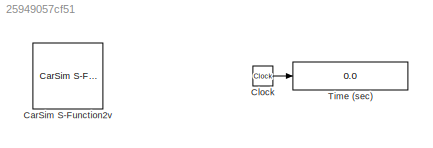
MODEL slx_25949057cf51
KIND model
CONFIG AbsTol = 1e-6
CONFIG FixedStep = 0.002
CONFIG MaxStep = auto
CONFIG MinStep = auto
CONFIG RelTol = 1e-3
CONFIG SampleTimeConstraint = Unconstrained
CONFIG Solver = ode45
CONFIG SolverMode = SingleTasking
CONFIG SolverName = ode45
CONFIG StartTime = 0
CONFIG StopTime = inf
BLOCK [Reference] CarSim S-Function2v  REF=Solver_SF/CarSim S-Function2v
  AttributesFormatString = Vehicle Code: %<VehicleCode>
  Ports = []
  Priority = 1
  SIMFILE = simfile.sim
  SourceBlock = Solver_SF/CarSim S-Function2v
  SourceType = Vehicle math model library
  VehicleCode = i_i
BLOCK [Clock] Clock
BLOCK [Display] Time (sec)
  Decimation = 100
  Format = bank
  Ports = [1]
LINE Clock:1 -> Time (sec):1
